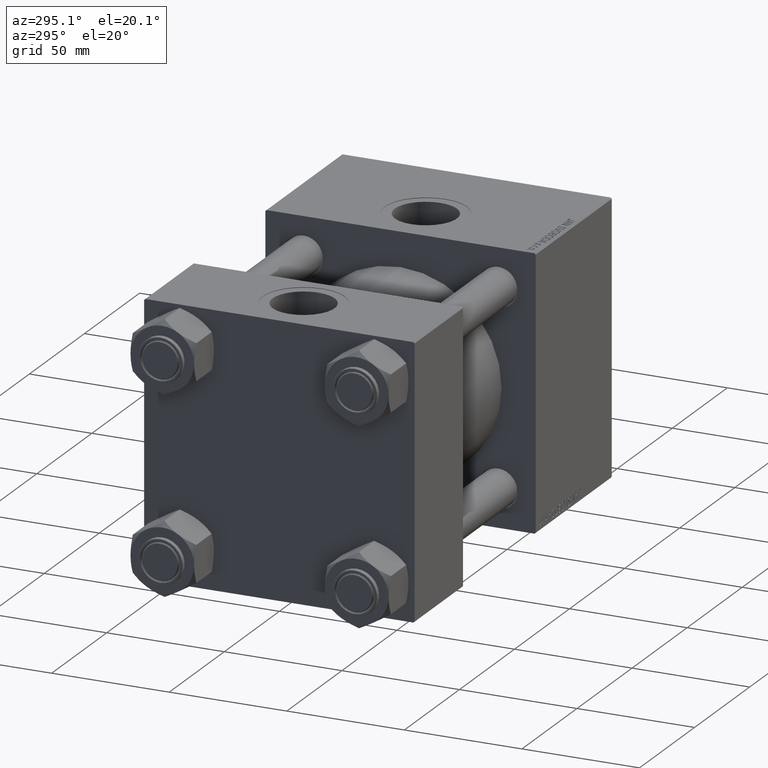
[diagram: clean part render]
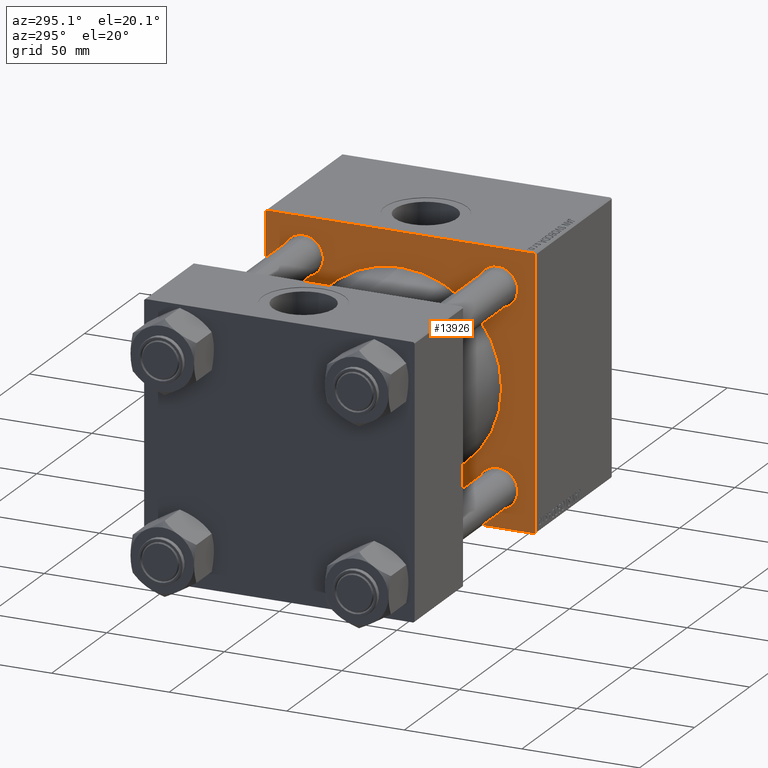
[diagram: same view with one face highlighted and labeled with its STEP entity id]
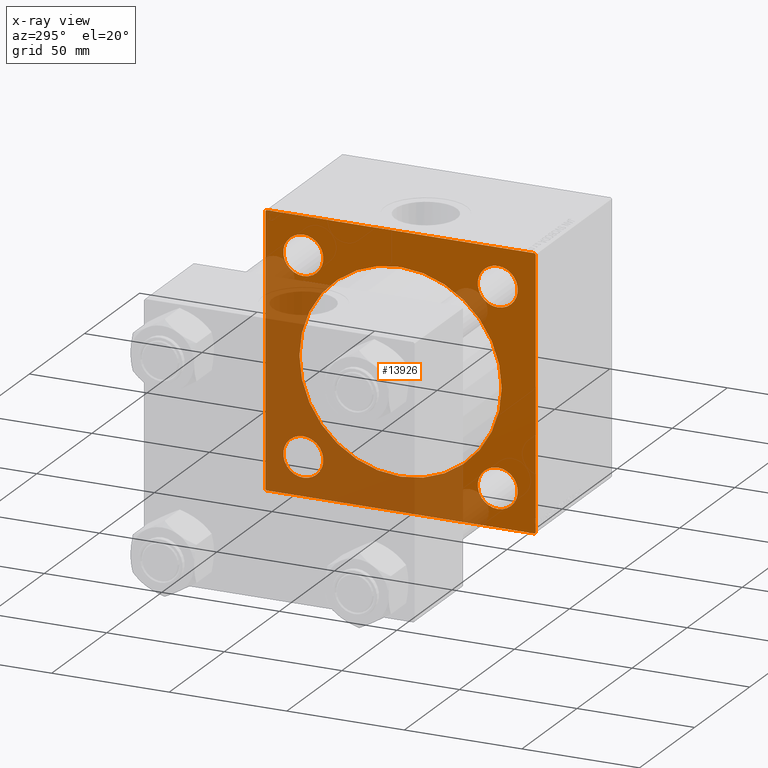
[diagram: x-ray of the same camera — body ghosted, the highlighted face saturated]
A machine part, auxiliary view. The second image highlights one B-rep face of the part: STEP entity #13926.
The next image is the same camera in x-ray: the body ghosted, the highlighted face saturated — about 46% of this face is hidden behind the body in this view.
In plain terms, the highlighted planar face has unit normal (-1, 0, 0).
Its self-contained STEP definition (entity closure, byte-faithful):
#61 = CARTESIAN_POINT ( 'NONE',  ( 110.0000000000000000, 41.34999999999999432, 41.35000000000000142 ) ) ;
#319 = CARTESIAN_POINT ( 'NONE',  ( 110.0000000000000000, -57.49999999999999289, -56.99999999999997868 ) ) ;
#1372 = CARTESIAN_POINT ( 'NONE',  ( 110.0000000000000000, 57.50000000000000000, 57.00000000000000711 ) ) ;
#1501 = ORIENTED_EDGE ( 'NONE', *, *, #32500, .T. ) ;
#2635 = CARTESIAN_POINT ( 'NONE',  ( 110.0000000000000000, -56.99999999999995737, -57.49999999999997868 ) ) ;
#3254 = CIRCLE ( 'NONE', #26246, 8.500000000000007105 ) ;
#3667 = VERTEX_POINT ( 'NONE', #319 ) ;
#3685 = DIRECTION ( 'NONE',  ( 1.000000000000000000, -0.000000000000000000, 0.000000000000000000 ) ) ;
#3715 = DIRECTION ( 'NONE',  ( 0.000000000000000000, 0.000000000000000000, -1.000000000000000000 ) ) ;
#4166 = DIRECTION ( 'NONE',  ( -0.000000000000000000, -0.7071067811865279218, -0.7071067811865672237 ) ) ;
#4236 = DIRECTION ( 'NONE',  ( 0.000000000000000000, -1.000000000000000000, -1.206764157201257291E-16 ) ) ;
#4881 = ORIENTED_EDGE ( 'NONE', *, *, #28708, .T. ) ;
#5482 = DIRECTION ( 'NONE',  ( -1.000000000000000000, 0.000000000000000000, -0.000000000000000000 ) ) ;
#5582 = AXIS2_PLACEMENT_3D ( 'NONE', #12441, #3685, #19381 ) ;
#5658 = CIRCLE ( 'NONE', #40957, 8.500000000000007105 ) ;
#6176 = ORIENTED_EDGE ( 'NONE', *, *, #22595, .T. ) ;
#6431 = VECTOR ( 'NONE', #50314, 1000.000000000000000 ) ;
#6583 = ORIENTED_EDGE ( 'NONE', *, *, #27874, .T. ) ;
#7260 = AXIS2_PLACEMENT_3D ( 'NONE', #12459, #19399, #8576 ) ;
#7473 = ORIENTED_EDGE ( 'NONE', *, *, #37576, .T. ) ;
#7524 = ORIENTED_EDGE ( 'NONE', *, *, #38045, .T. ) ;
#8355 = CARTESIAN_POINT ( 'NONE',  ( 110.0000000000000000, 57.50000000000000000, 57.50000000000000711 ) ) ;
#8576 = DIRECTION ( 'NONE',  ( 0.000000000000000000, 0.000000000000000000, 1.000000000000000000 ) ) ;
#8578 = ORIENTED_EDGE ( 'NONE', *, *, #27856, .T. ) ;
#8978 = EDGE_LOOP ( 'NONE', ( #34787, #25567 ) ) ;
#9098 = CARTESIAN_POINT ( 'NONE',  ( 110.0000000000000000, 57.00000000000000000, -57.49999999999996447 ) ) ;
#9403 = CARTESIAN_POINT ( 'NONE',  ( 110.0000000000000000, -56.99999999999998579, 57.49999999999999289 ) ) ;
#9545 = CARTESIAN_POINT ( 'NONE',  ( 110.0000000000000000, 41.34999999999999432, 49.85000000000001563 ) ) ;
#9597 = CIRCLE ( 'NONE', #24371, 43.00000000000000000 ) ;
#9752 = AXIS2_PLACEMENT_3D ( 'NONE', #49685, #26844, #25824 ) ;
#9999 = CARTESIAN_POINT ( 'NONE',  ( 110.0000000000000000, 41.34999999999999432, -49.85000000000001563 ) ) ;
#10158 = LINE ( 'NONE', #41493, #38443 ) ;
#10823 = DIRECTION ( 'NONE',  ( 0.000000000000000000, 0.000000000000000000, -1.000000000000000000 ) ) ;
#10904 = DIRECTION ( 'NONE',  ( 0.000000000000000000, 0.000000000000000000, 1.000000000000000000 ) ) ;
#11052 = LINE ( 'NONE', #42379, #6431 ) ;
#11340 = AXIS2_PLACEMENT_3D ( 'NONE', #41151, #37535, #17777 ) ;
#11968 = CARTESIAN_POINT ( 'NONE',  ( 110.0000000000000000, 41.34999999999999432, -41.35000000000000142 ) ) ;
#12154 = CIRCLE ( 'NONE', #11340, 43.00000000000000000 ) ;
#12422 = VERTEX_POINT ( 'NONE', #35115 ) ;
#12441 = CARTESIAN_POINT ( 'NONE',  ( 110.0000000000000000, -41.34999999999998721, 41.35000000000000853 ) ) ;
#12459 = CARTESIAN_POINT ( 'NONE',  ( 110.0000000000000000, 41.34999999999999432, -41.35000000000000142 ) ) ;
#12674 = VERTEX_POINT ( 'NONE', #30894 ) ;
#12843 = CARTESIAN_POINT ( 'NONE',  ( 110.0000000000000000, -41.34999999999998721, -49.85000000000002274 ) ) ;
#13003 = DIRECTION ( 'NONE',  ( 0.000000000000000000, 0.000000000000000000, 1.000000000000000000 ) ) ;
#13926 = ADVANCED_FACE ( 'NONE', ( #25772, #32729, #13965, #17329, #20920, #25268 ), #44519, .T. ) ;
#13965 = FACE_BOUND ( 'NONE', #24231, .T. ) ;
#14188 = VERTEX_POINT ( 'NONE', #9999 ) ;
#14344 = DIRECTION ( 'NONE',  ( 1.000000000000000000, -0.000000000000000000, 0.000000000000000000 ) ) ;
#14642 = CIRCLE ( 'NONE', #5582, 8.500000000000007105 ) ;
#14802 = VERTEX_POINT ( 'NONE', #12843 ) ;
#14912 = DIRECTION ( 'NONE',  ( 1.000000000000000000, -0.000000000000000000, 0.000000000000000000 ) ) ;
#15024 = LINE ( 'NONE', #26825, #43418 ) ;
#15623 = VECTOR ( 'NONE', #3715, 1000.000000000000000 ) ;
#17329 = FACE_BOUND ( 'NONE', #8978, .T. ) ;
#17622 = DIRECTION ( 'NONE',  ( 0.000000000000000000, 0.7071067811865672237, -0.7071067811865279218 ) ) ;
#17777 = DIRECTION ( 'NONE',  ( 0.000000000000000000, 0.000000000000000000, -1.000000000000000000 ) ) ;
#17906 = CARTESIAN_POINT ( 'NONE',  ( 110.0000000000000000, 56.99999999999997158, 57.50000000000000711 ) ) ;
#18506 = VERTEX_POINT ( 'NONE', #17906 ) ;
#18530 = DIRECTION ( 'NONE',  ( -0.000000000000000000, 0.7071067811865328068, 0.7071067811865622277 ) ) ;
#18914 = LINE ( 'NONE', #42774, #15623 ) ;
#18942 = EDGE_CURVE ( 'NONE', #25908, #25462, #30915, .T. ) ;
#19262 = CARTESIAN_POINT ( 'NONE',  ( 110.0000000000000000, 41.34999999999999432, 41.35000000000000142 ) ) ;
#19381 = DIRECTION ( 'NONE',  ( 0.000000000000000000, 0.000000000000000000, 1.000000000000000000 ) ) ;
#19399 = DIRECTION ( 'NONE',  ( 1.000000000000000000, -0.000000000000000000, 0.000000000000000000 ) ) ;
#19614 = VECTOR ( 'NONE', #18530, 1000.000000000000000 ) ;
#20869 = AXIS2_PLACEMENT_3D ( 'NONE', #45519, #5482, #29366 ) ;
#20920 = FACE_BOUND ( 'NONE', #27076, .T. ) ;
#21427 = DIRECTION ( 'NONE',  ( 1.000000000000000000, 0.000000000000000000, 0.000000000000000000 ) ) ;
#21473 = DIRECTION ( 'NONE',  ( 1.000000000000000000, -0.000000000000000000, 0.000000000000000000 ) ) ;
#21864 = LINE ( 'NONE', #22388, #19614 ) ;
#21914 = VECTOR ( 'NONE', #4236, 1000.000000000000000 ) ;
#22388 = CARTESIAN_POINT ( 'NONE',  ( 110.0000000000000000, -57.25000000000117240, 57.24999999999879208 ) ) ;
#22595 = EDGE_CURVE ( 'NONE', #42740, #12422, #12154, .T. ) ;
#22724 = DIRECTION ( 'NONE',  ( 1.000000000000000000, -0.000000000000000000, 0.000000000000000000 ) ) ;
#22786 = ORIENTED_EDGE ( 'NONE', *, *, #44814, .T. ) ;
#22978 = DIRECTION ( 'NONE',  ( 0.000000000000000000, -1.000000000000000000, -1.206764157201257291E-16 ) ) ;
#23177 = ORIENTED_EDGE ( 'NONE', *, *, #33770, .F. ) ;
#24231 = EDGE_LOOP ( 'NONE', ( #39902, #4881 ) ) ;
#24308 = VECTOR ( 'NONE', #4166, 1000.000000000000000 ) ;
#24371 = AXIS2_PLACEMENT_3D ( 'NONE', #49377, #21427, #44253 ) ;
#24476 = EDGE_CURVE ( 'NONE', #45128, #14802, #31901, .T. ) ;
#25242 = EDGE_LOOP ( 'NONE', ( #48004, #6583, #26328, #44609, #23177, #41534, #1501, #44381 ) ) ;
#25268 = FACE_OUTER_BOUND ( 'NONE', #25242, .T. ) ;
#25462 = VERTEX_POINT ( 'NONE', #9098 ) ;
#25567 = ORIENTED_EDGE ( 'NONE', *, *, #40744, .T. ) ;
#25772 = FACE_BOUND ( 'NONE', #45770, .T. ) ;
#25824 = DIRECTION ( 'NONE',  ( 0.000000000000000000, 0.000000000000000000, 1.000000000000000000 ) ) ;
#25908 = VERTEX_POINT ( 'NONE', #45099 ) ;
#26246 = AXIS2_PLACEMENT_3D ( 'NONE', #61, #22724, #10904 ) ;
#26328 = ORIENTED_EDGE ( 'NONE', *, *, #32778, .F. ) ;
#26825 = CARTESIAN_POINT ( 'NONE',  ( 110.0000000000000000, 57.50000000000000000, -57.49999999999996447 ) ) ;
#26844 = DIRECTION ( 'NONE',  ( 1.000000000000000000, -0.000000000000000000, 0.000000000000000000 ) ) ;
#27076 = EDGE_LOOP ( 'NONE', ( #6176, #7524 ) ) ;
#27392 = EDGE_CURVE ( 'NONE', #39340, #32061, #14642, .T. ) ;
#27818 = CIRCLE ( 'NONE', #7260, 8.500000000000007105 ) ;
#27856 = EDGE_CURVE ( 'NONE', #42179, #29295, #37606, .T. ) ;
#27874 = EDGE_CURVE ( 'NONE', #37110, #3667, #11052, .T. ) ;
#27984 = EDGE_CURVE ( 'NONE', #18506, #30633, #10158, .T. ) ;
#28061 = VECTOR ( 'NONE', #10823, 1000.000000000000000 ) ;
#28586 = AXIS2_PLACEMENT_3D ( 'NONE', #19262, #14912, #30580 ) ;
#28708 = EDGE_CURVE ( 'NONE', #14188, #34498, #5658, .T. ) ;
#29236 = CARTESIAN_POINT ( 'NONE',  ( 110.0000000000000000, -41.34999999999998721, 41.35000000000000853 ) ) ;
#29295 = VERTEX_POINT ( 'NONE', #35405 ) ;
#29366 = DIRECTION ( 'NONE',  ( -0.000000000000000000, 0.000000000000000000, 1.000000000000000000 ) ) ;
#30580 = DIRECTION ( 'NONE',  ( 0.000000000000000000, 0.000000000000000000, 1.000000000000000000 ) ) ;
#30633 = VERTEX_POINT ( 'NONE', #1372 ) ;
#30894 = CARTESIAN_POINT ( 'NONE',  ( 110.0000000000000000, -57.49999999999999289, 56.99999999999996447 ) ) ;
#30915 = LINE ( 'NONE', #34764, #24308 ) ;
#31234 = DIRECTION ( 'NONE',  ( 1.000000000000000000, -0.000000000000000000, 0.000000000000000000 ) ) ;
#31901 = CIRCLE ( 'NONE', #9752, 8.500000000000007105 ) ;
#32061 = VERTEX_POINT ( 'NONE', #41076 ) ;
#32500 = EDGE_CURVE ( 'NONE', #30633, #25908, #18914, .T. ) ;
#32700 = CARTESIAN_POINT ( 'NONE',  ( 110.0000000000000000, -41.34999999999998721, -32.85000000000000142 ) ) ;
#32729 = FACE_BOUND ( 'NONE', #41791, .T. ) ;
#32778 = EDGE_CURVE ( 'NONE', #12674, #3667, #33179, .T. ) ;
#33179 = LINE ( 'NONE', #34193, #28061 ) ;
#33383 = CIRCLE ( 'NONE', #40775, 8.500000000000007105 ) ;
#33770 = EDGE_CURVE ( 'NONE', #18506, #35728, #47386, .T. ) ;
#34193 = CARTESIAN_POINT ( 'NONE',  ( 110.0000000000000000, -57.49999999999999289, 57.49999999999999289 ) ) ;
#34498 = VERTEX_POINT ( 'NONE', #39016 ) ;
#34764 = CARTESIAN_POINT ( 'NONE',  ( 110.0000000000000000, 57.25000000000157030, -57.24999999999838707 ) ) ;
#34787 = ORIENTED_EDGE ( 'NONE', *, *, #24476, .T. ) ;
#35115 = CARTESIAN_POINT ( 'NONE',  ( 110.0000000000000000, 2.663896022368408223E-15, -43.00000000000000000 ) ) ;
#35157 = AXIS2_PLACEMENT_3D ( 'NONE', #48154, #21473, #13003 ) ;
#35211 = CARTESIAN_POINT ( 'NONE',  ( 110.0000000000000000, -41.34999999999998721, 32.85000000000000142 ) ) ;
#35405 = CARTESIAN_POINT ( 'NONE',  ( 110.0000000000000000, 41.34999999999999432, 32.84999999999999432 ) ) ;
#35728 = VERTEX_POINT ( 'NONE', #9403 ) ;
#37110 = VERTEX_POINT ( 'NONE', #2635 ) ;
#37535 = DIRECTION ( 'NONE',  ( 1.000000000000000000, 0.000000000000000000, 0.000000000000000000 ) ) ;
#37576 = EDGE_CURVE ( 'NONE', #32061, #39340, #33383, .T. ) ;
#37606 = CIRCLE ( 'NONE', #28586, 8.500000000000007105 ) ;
#38045 = EDGE_CURVE ( 'NONE', #12422, #42740, #9597, .T. ) ;
#38408 = CIRCLE ( 'NONE', #35157, 8.500000000000007105 ) ;
#38443 = VECTOR ( 'NONE', #17622, 1000.000000000000000 ) ;
#39016 = CARTESIAN_POINT ( 'NONE',  ( 110.0000000000000000, 41.34999999999999432, -32.84999999999999432 ) ) ;
#39340 = VERTEX_POINT ( 'NONE', #35211 ) ;
#39902 = ORIENTED_EDGE ( 'NONE', *, *, #41875, .T. ) ;
#40744 = EDGE_CURVE ( 'NONE', #14802, #45128, #38408, .T. ) ;
#40775 = AXIS2_PLACEMENT_3D ( 'NONE', #29236, #14344, #41818 ) ;
#40957 = AXIS2_PLACEMENT_3D ( 'NONE', #11968, #31234, #42776 ) ;
#41076 = CARTESIAN_POINT ( 'NONE',  ( 110.0000000000000000, -41.34999999999998721, 49.85000000000002274 ) ) ;
#41151 = CARTESIAN_POINT ( 'NONE',  ( 110.0000000000000000, -2.602085213965210642E-15, 0.000000000000000000 ) ) ;
#41493 = CARTESIAN_POINT ( 'NONE',  ( 110.0000000000000000, 57.24999999999840838, 57.25000000000159162 ) ) ;
#41534 = ORIENTED_EDGE ( 'NONE', *, *, #27984, .T. ) ;
#41791 = EDGE_LOOP ( 'NONE', ( #8578, #22786 ) ) ;
#41818 = DIRECTION ( 'NONE',  ( 0.000000000000000000, 0.000000000000000000, 1.000000000000000000 ) ) ;
#41875 = EDGE_CURVE ( 'NONE', #34498, #14188, #27818, .T. ) ;
#42179 = VERTEX_POINT ( 'NONE', #9545 ) ;
#42248 = EDGE_CURVE ( 'NONE', #12674, #35728, #21864, .T. ) ;
#42379 = CARTESIAN_POINT ( 'NONE',  ( 110.0000000000000000, -57.24999999999798916, -57.25000000000196820 ) ) ;
#42740 = VERTEX_POINT ( 'NONE', #48970 ) ;
#42774 = CARTESIAN_POINT ( 'NONE',  ( 110.0000000000000000, 57.50000000000000000, 57.50000000000000711 ) ) ;
#42776 = DIRECTION ( 'NONE',  ( 0.000000000000000000, 0.000000000000000000, 1.000000000000000000 ) ) ;
#43141 = EDGE_CURVE ( 'NONE', #25462, #37110, #15024, .T. ) ;
#43418 = VECTOR ( 'NONE', #22978, 1000.000000000000000 ) ;
#44253 = DIRECTION ( 'NONE',  ( 0.000000000000000000, 0.000000000000000000, -1.000000000000000000 ) ) ;
#44381 = ORIENTED_EDGE ( 'NONE', *, *, #18942, .T. ) ;
#44519 = PLANE ( 'NONE',  #20869 ) ;
#44609 = ORIENTED_EDGE ( 'NONE', *, *, #42248, .T. ) ;
#44814 = EDGE_CURVE ( 'NONE', #29295, #42179, #3254, .T. ) ;
#45099 = CARTESIAN_POINT ( 'NONE',  ( 110.0000000000000000, 57.50000000000000000, -56.99999999999994316 ) ) ;
#45128 = VERTEX_POINT ( 'NONE', #32700 ) ;
#45519 = CARTESIAN_POINT ( 'NONE',  ( 110.0000000000000000, 0.000000000000000000, 0.000000000000000000 ) ) ;
#45596 = ORIENTED_EDGE ( 'NONE', *, *, #27392, .T. ) ;
#45770 = EDGE_LOOP ( 'NONE', ( #7473, #45596 ) ) ;
#47386 = LINE ( 'NONE', #8355, #21914 ) ;
#48004 = ORIENTED_EDGE ( 'NONE', *, *, #43141, .T. ) ;
#48154 = CARTESIAN_POINT ( 'NONE',  ( 110.0000000000000000, -41.34999999999998721, -41.35000000000000853 ) ) ;
#48970 = CARTESIAN_POINT ( 'NONE',  ( 110.0000000000000000, -2.602085213965210642E-15, 43.00000000000000000 ) ) ;
#49377 = CARTESIAN_POINT ( 'NONE',  ( 110.0000000000000000, -2.602085213965210642E-15, 0.000000000000000000 ) ) ;
#49685 = CARTESIAN_POINT ( 'NONE',  ( 110.0000000000000000, -41.34999999999998721, -41.35000000000000853 ) ) ;
#50314 = DIRECTION ( 'NONE',  ( 0.000000000000000000, -0.7071067811865721087, 0.7071067811865230368 ) ) ;